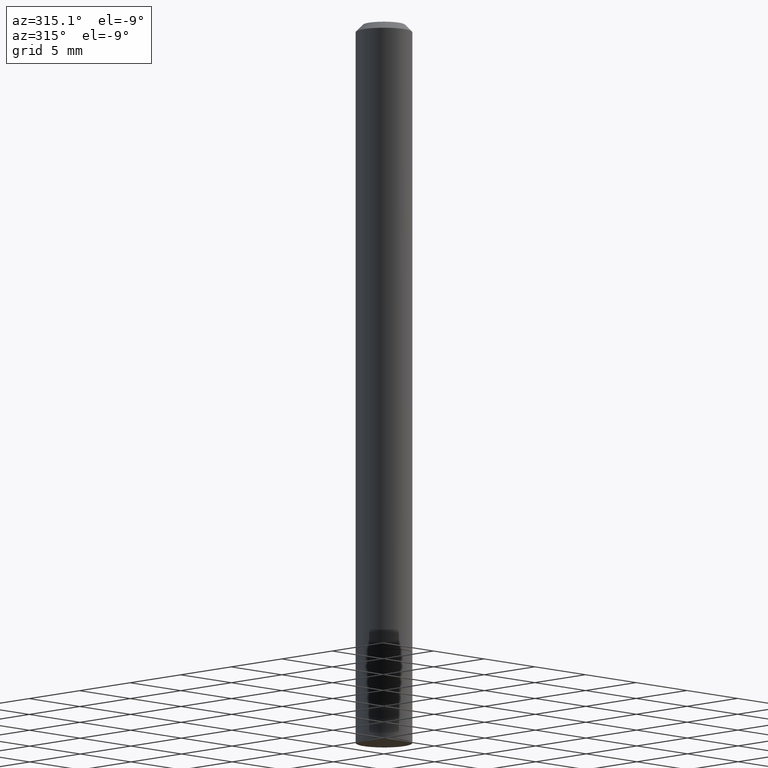
[diagram: clean part render]
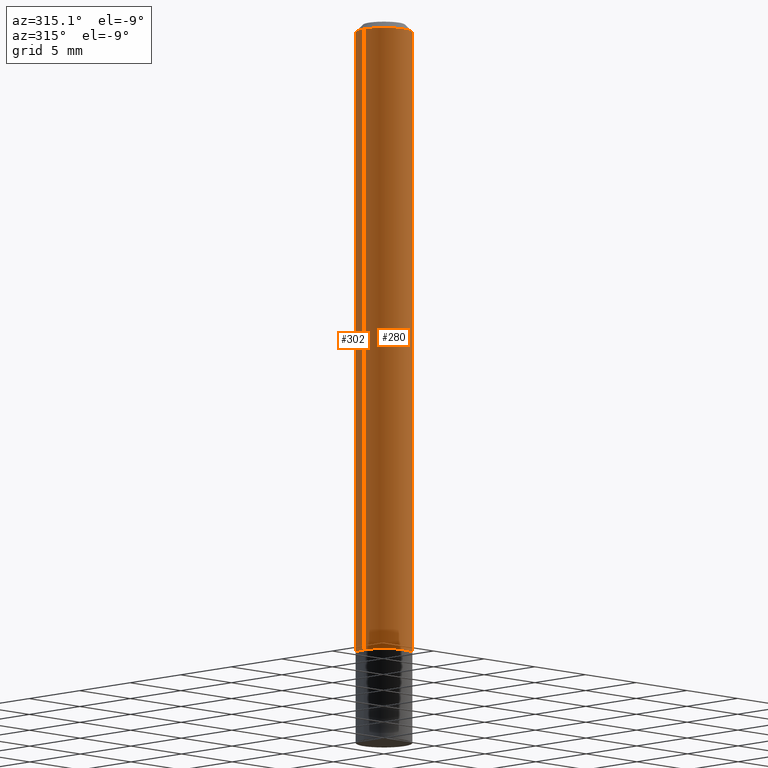
[diagram: same view with one multi-face feature highlighted, each face labeled with its STEP entity id]
A machine part, auxiliary view. The highlighted faces form ONE feature: a constant-radius fillet chain: 2 tangent blend faces with common blend radius 1.9837 mm. The faces share edges in the B-rep.
Their STEP definitions:
[1] entity #280 (Cylinder):
#27 = EDGE_CURVE ( 'NONE', #131, #72, #231, .T. ) ;
#39 = VECTOR ( 'NONE', #329, 39.37007874015748143 ) ;
#49 = FACE_OUTER_BOUND ( 'NONE', #163, .T. ) ;
#69 = AXIS2_PLACEMENT_3D ( 'NONE', #389, #82, #85 ) ;
#72 = VERTEX_POINT ( 'NONE', #88 ) ;
#82 = DIRECTION ( 'NONE',  ( -2.445468806185136597E-29, 3.491481338843145583E-15, 1.000000000000000000 ) ) ;
#85 = DIRECTION ( 'NONE',  ( 1.000000000000000000, -6.982962677686266711E-15, 0.000000000000000000 ) ) ;
#86 = CARTESIAN_POINT ( 'NONE',  ( -0.07809999999999978071, 4.755397583504327577E-16, -0.02000000000000005940 ) ) ;
#88 = CARTESIAN_POINT ( 'NONE',  ( 0.07810000000000000275, -6.651970246763958311E-15, -1.748999999999999888 ) ) ;
#89 = CARTESIAN_POINT ( 'NONE',  ( 0.07809999999999987785, -5.453693851272966475E-16, 3.808294061896620098E-30 ) ) ;
#94 = VERTEX_POINT ( 'NONE', #375 ) ;
#101 = LINE ( 'NONE', #357, #39 ) ;
#119 = ORIENTED_EDGE ( 'NONE', *, *, #217, .F. ) ;
#130 = DIRECTION ( 'NONE',  ( 1.000000000000000000, -6.982962677686265922E-15, 0.000000000000000000 ) ) ;
#131 = VERTEX_POINT ( 'NONE', #145 ) ;
#145 = CARTESIAN_POINT ( 'NONE',  ( -0.07810000000000000275, -2.533281367578119089E-15, -1.748999999999999888 ) ) ;
#160 = DIRECTION ( 'NONE',  ( -2.445468806185136597E-29, 3.491481338843145583E-15, 1.000000000000000000 ) ) ;
#162 = CARTESIAN_POINT ( 'NONE',  ( 4.890937612370288047E-31, -6.982962677686311331E-17, -0.02000000000000005940 ) ) ;
#163 = EDGE_LOOP ( 'NONE', ( #119, #166, #272, #182 ) ) ;
#166 = ORIENTED_EDGE ( 'NONE', *, *, #27, .T. ) ;
#168 = DIRECTION ( 'NONE',  ( -2.445468806185136877E-29, 3.491481338843145188E-15, 1.000000000000000000 ) ) ;
#175 = CYLINDRICAL_SURFACE ( 'NONE', #248, 0.07809999999999987785 ) ;
#182 = ORIENTED_EDGE ( 'NONE', *, *, #209, .F. ) ;
#209 = EDGE_CURVE ( 'NONE', #364, #94, #305, .T. ) ;
#217 = EDGE_CURVE ( 'NONE', #131, #364, #101, .T. ) ;
#231 = CIRCLE ( 'NONE', #69, 0.07810000000000000275 ) ;
#236 = AXIS2_PLACEMENT_3D ( 'NONE', #162, #160, #130 ) ;
#248 = AXIS2_PLACEMENT_3D ( 'NONE', #316, #257, #385 ) ;
#257 = DIRECTION ( 'NONE',  ( -2.445468806185136597E-29, 3.491481338843145583E-15, 1.000000000000000000 ) ) ;
#272 = ORIENTED_EDGE ( 'NONE', *, *, #347, .T. ) ;
#280 = ADVANCED_FACE ( 'NONE', ( #49 ), #175, .T. ) ;
#305 = CIRCLE ( 'NONE', #236, 0.07809999999999978071 ) ;
#316 = CARTESIAN_POINT ( 'NONE',  ( 0.000000000000000000, 0.000000000000000000, 0.000000000000000000 ) ) ;
#329 = DIRECTION ( 'NONE',  ( -2.445468806185136877E-29, 3.491481338843145188E-15, 1.000000000000000000 ) ) ;
#347 = EDGE_CURVE ( 'NONE', #72, #94, #376, .T. ) ;
#357 = CARTESIAN_POINT ( 'NONE',  ( -0.07809999999999987785, 5.549338766286373773E-16, -3.841688305489075670E-30 ) ) ;
#364 = VERTEX_POINT ( 'NONE', #86 ) ;
#365 = VECTOR ( 'NONE', #168, 39.37007874015748143 ) ;
#375 = CARTESIAN_POINT ( 'NONE',  ( 0.07809999999999978071, -6.056345204028181313E-16, -0.02000000000000005940 ) ) ;
#376 = LINE ( 'NONE', #89, #365 ) ;
#385 = DIRECTION ( 'NONE',  ( 1.000000000000000000, -6.982962677686267499E-15, 4.876176775795935793E-29 ) ) ;
#389 = CARTESIAN_POINT ( 'NONE',  ( 4.277124942017804002E-29, -6.106600861636660875E-15, -1.748999999999999888 ) ) ;
[2] entity #302 (Cylinder):
#11 = ORIENTED_EDGE ( 'NONE', *, *, #310, .T. ) ;
#14 = CIRCLE ( 'NONE', #123, 0.07810000000000000275 ) ;
#39 = VECTOR ( 'NONE', #329, 39.37007874015748143 ) ;
#65 = CARTESIAN_POINT ( 'NONE',  ( 4.890937612370288047E-31, -6.982962677686311331E-17, -0.02000000000000005940 ) ) ;
#72 = VERTEX_POINT ( 'NONE', #88 ) ;
#77 = CIRCLE ( 'NONE', #273, 0.07809999999999978071 ) ;
#86 = CARTESIAN_POINT ( 'NONE',  ( -0.07809999999999978071, 4.755397583504327577E-16, -0.02000000000000005940 ) ) ;
#88 = CARTESIAN_POINT ( 'NONE',  ( 0.07810000000000000275, -6.651970246763958311E-15, -1.748999999999999888 ) ) ;
#89 = CARTESIAN_POINT ( 'NONE',  ( 0.07809999999999987785, -5.453693851272966475E-16, 3.808294061896620098E-30 ) ) ;
#94 = VERTEX_POINT ( 'NONE', #375 ) ;
#95 = ORIENTED_EDGE ( 'NONE', *, *, #217, .T. ) ;
#101 = LINE ( 'NONE', #357, #39 ) ;
#123 = AXIS2_PLACEMENT_3D ( 'NONE', #205, #373, #287 ) ;
#131 = VERTEX_POINT ( 'NONE', #145 ) ;
#145 = CARTESIAN_POINT ( 'NONE',  ( -0.07810000000000000275, -2.533281367578119089E-15, -1.748999999999999888 ) ) ;
#146 = CYLINDRICAL_SURFACE ( 'NONE', #352, 0.07809999999999987785 ) ;
#158 = ORIENTED_EDGE ( 'NONE', *, *, #347, .F. ) ;
#168 = DIRECTION ( 'NONE',  ( -2.445468806185136877E-29, 3.491481338843145188E-15, 1.000000000000000000 ) ) ;
#170 = DIRECTION ( 'NONE',  ( 1.000000000000000000, -6.982962677686267499E-15, 4.876176775795935793E-29 ) ) ;
#192 = EDGE_LOOP ( 'NONE', ( #11, #95, #318, #158 ) ) ;
#202 = FACE_OUTER_BOUND ( 'NONE', #192, .T. ) ;
#205 = CARTESIAN_POINT ( 'NONE',  ( 4.277124942017804002E-29, -6.106600861636660875E-15, -1.748999999999999888 ) ) ;
#217 = EDGE_CURVE ( 'NONE', #131, #364, #101, .T. ) ;
#247 = EDGE_CURVE ( 'NONE', #94, #364, #77, .T. ) ;
#270 = DIRECTION ( 'NONE',  ( 1.000000000000000000, -6.982962677686265922E-15, 0.000000000000000000 ) ) ;
#273 = AXIS2_PLACEMENT_3D ( 'NONE', #65, #326, #270 ) ;
#283 = CARTESIAN_POINT ( 'NONE',  ( 0.000000000000000000, 0.000000000000000000, 0.000000000000000000 ) ) ;
#287 = DIRECTION ( 'NONE',  ( 1.000000000000000000, -6.982962677686266711E-15, 0.000000000000000000 ) ) ;
#302 = ADVANCED_FACE ( 'NONE', ( #202 ), #146, .T. ) ;
#310 = EDGE_CURVE ( 'NONE', #72, #131, #14, .T. ) ;
#318 = ORIENTED_EDGE ( 'NONE', *, *, #247, .F. ) ;
#320 = DIRECTION ( 'NONE',  ( -2.445468806185136597E-29, 3.491481338843145583E-15, 1.000000000000000000 ) ) ;
#326 = DIRECTION ( 'NONE',  ( -2.445468806185136597E-29, 3.491481338843145583E-15, 1.000000000000000000 ) ) ;
#329 = DIRECTION ( 'NONE',  ( -2.445468806185136877E-29, 3.491481338843145188E-15, 1.000000000000000000 ) ) ;
#347 = EDGE_CURVE ( 'NONE', #72, #94, #376, .T. ) ;
#352 = AXIS2_PLACEMENT_3D ( 'NONE', #283, #320, #170 ) ;
#357 = CARTESIAN_POINT ( 'NONE',  ( -0.07809999999999987785, 5.549338766286373773E-16, -3.841688305489075670E-30 ) ) ;
#364 = VERTEX_POINT ( 'NONE', #86 ) ;
#365 = VECTOR ( 'NONE', #168, 39.37007874015748143 ) ;
#373 = DIRECTION ( 'NONE',  ( -2.445468806185136597E-29, 3.491481338843145583E-15, 1.000000000000000000 ) ) ;
#375 = CARTESIAN_POINT ( 'NONE',  ( 0.07809999999999978071, -6.056345204028181313E-16, -0.02000000000000005940 ) ) ;
#376 = LINE ( 'NONE', #89, #365 ) ;